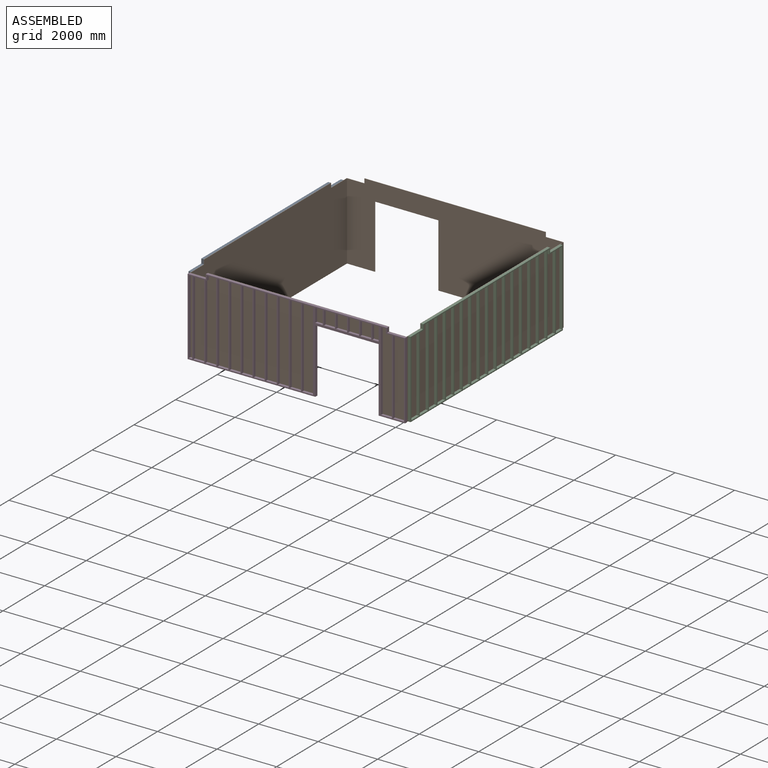
[diagram: assembled view]
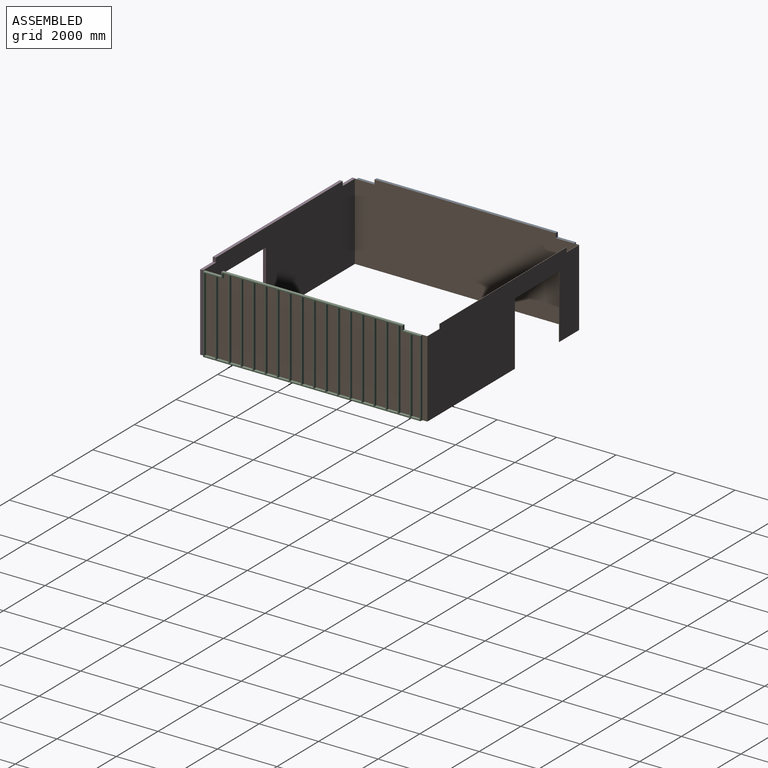
[diagram: assembled view, second angle]
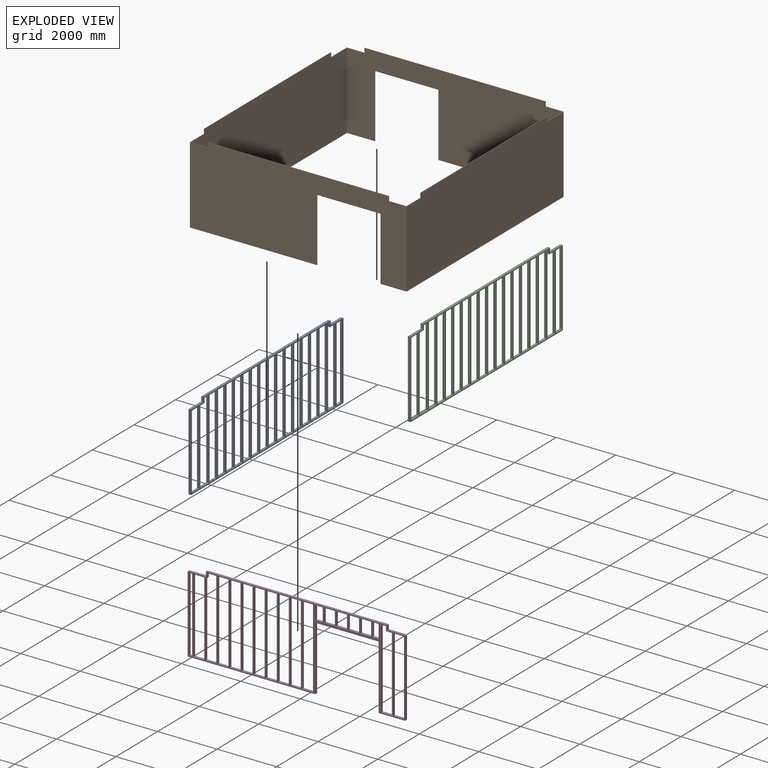
[diagram: exploded view]
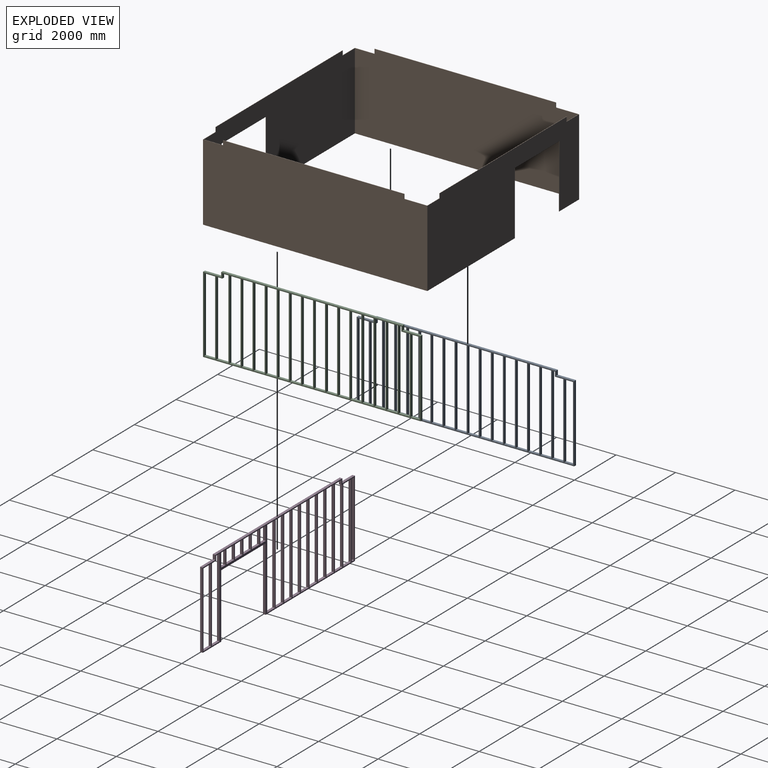
[diagram: exploded view, second angle]
ASSEMBLY  parts=4 mates=2
PART A: 86 faces, bbox 88.9x7315.2x2743.2 mm
  f0: plane 368.3x88.9mm, normal (0,0,1), area 32741.9mm2, adj f34,f38,f82,f84
  f1: plane 279.4x88.9mm, normal (0,0,-1), area 24838.7mm2, adj f34,f38,f49,f84
  f2: plane 368.3x88.9mm, normal (0,0,-1), area 32741.9mm2, adj f34,f38,f80,f83
  f3: plane 368.3x88.9mm, normal (0,0,1), area 32741.9mm2, adj f34,f38,f80,f83
  f4: plane 368.3x88.9mm, normal (0,0,-1), area 32741.9mm2, adj f34,f38,f78,f81
  f5: plane 368.3x88.9mm, normal (0,0,1), area 32741.9mm2, adj f34,f38,f78,f81
  f6: plane 368.3x88.9mm, normal (0,0,-1), area 32741.9mm2, adj f34,f38,f76,f79
  f7: plane 368.3x88.9mm, normal (0,0,1), area 32741.9mm2, adj f34,f38,f76,f79
  f8: plane 368.3x88.9mm, normal (0,0,-1), area 32741.9mm2, adj f34,f38,f74,f77
  f9: plane 368.3x88.9mm, normal (0,0,1), area 32741.9mm2, adj f34,f38,f74,f77
  f10: plane 368.3x88.9mm, normal (0,0,-1), area 32741.9mm2, adj f34,f38,f72,f75
  f11: plane 368.3x88.9mm, normal (0,0,1), area 32741.9mm2, adj f34,f38,f72,f75
  f12: plane 368.3x88.9mm, normal (0,0,-1), area 32741.9mm2, adj f34,f38,f70,f73
  f13: plane 368.3x88.9mm, normal (0,0,1), area 32741.9mm2, adj f34,f38,f70,f73
  f14: plane 368.3x88.9mm, normal (0,0,-1), area 32741.9mm2, adj f34,f38,f68,f71
  f15: plane 368.3x88.9mm, normal (0,0,1), area 32741.9mm2, adj f34,f38,f68,f71
  f16: plane 368.3x88.9mm, normal (0,0,-1), area 32741.9mm2, adj f34,f38,f66,f69
  f17: plane 368.3x88.9mm, normal (0,0,1), area 32741.9mm2, adj f34,f38,f66,f69
  f18: plane 368.3x88.9mm, normal (0,0,-1), area 32741.9mm2, adj f34,f38,f64,f67
  f19: plane 368.3x88.9mm, normal (0,0,1), area 32741.9mm2, adj f34,f38,f64,f67
  f20: plane 368.3x88.9mm, normal (0,0,-1), area 32741.9mm2, adj f34,f38,f62,f65
  f21: plane 368.3x88.9mm, normal (0,0,1), area 32741.9mm2, adj f34,f38,f62,f65
  f22: plane 368.3x88.9mm, normal (0,0,-1), area 32741.9mm2, adj f34,f38,f60,f63
  f23: plane 368.3x88.9mm, normal (0,0,1), area 32741.9mm2, adj f34,f38,f60,f63
  f24: plane 368.3x88.9mm, normal (0,0,-1), area 32741.9mm2, adj f34,f38,f58,f61
  f25: plane 368.3x88.9mm, normal (0,0,1), area 32741.9mm2, adj f34,f38,f58,f61
  f26: plane 368.3x88.9mm, normal (0,0,-1), area 32741.9mm2, adj f34,f38,f56,f59
  f27: plane 368.3x88.9mm, normal (0,0,1), area 32741.9mm2, adj f34,f38,f56,f59
  f28: plane 368.3x88.9mm, normal (0,0,-1), area 32741.9mm2, adj f34,f38,f54,f57
  f29: plane 368.3x88.9mm, normal (0,0,1), area 32741.9mm2, adj f34,f38,f54,f57
  f30: plane 203.2x88.9mm, normal (0,0,-1), area 18064.5mm2, adj f34,f38,f51,f55
  f31: plane 406.4x88.9mm, normal (0,0,1), area 36129mm2, adj f34,f38,f53,f55
  f32: plane 368.3x88.9mm, normal (0,0,1), area 32741.9mm2, adj f34,f38,f45,f52
  f33: plane 203.2x88.9mm, normal (0,0,-1), area 18064.5mm2, adj f34,f38,f51,f53
  f34: plane 7315.2x2743.2mm, normal (1,0,0), area 2476446.7mm2, adj f0,f1,f2,f3,f4,f5,f6,f7
  f35: plane 6096x88.9mm, normal (0,0,1), area 541934.4mm2, adj f34,f38,f41,f43
  f36: plane 2590.8x88.9mm, normal (0,-1,0), area 230322.1mm2, adj f34,f38,f39,f42
  f37: plane 2590.8x88.9mm, normal (0,1,0), area 230322.1mm2, adj f34,f38,f39,f40
  f38: plane 7315.2x2743.2mm, normal (-1,0,0), area 2476446.7mm2, adj f0,f1,f2,f3,f4,f5,f6,f7
  f39: plane 7315.2x88.9mm, normal (0,0,-1), area 650321.3mm2, adj f34,f36,f37,f38
  f40: plane 609.6x88.9mm, normal (0,0,1), area 54193.4mm2, adj f34,f37,f38,f41
  f41: plane 152.4x88.9mm, normal (0,1,0), area 13548.4mm2, adj f34,f35,f38,f40
  f42: plane 609.6x88.9mm, normal (0,0,1), area 54193.4mm2, adj f34,f36,f38,f43
  f43: plane 152.4x88.9mm, normal (0,-1,0), area 13548.4mm2, adj f34,f35,f38,f42
  f44: plane 88.9x88.9mm, normal (0,0,-1), area 7903.2mm2, adj f34,f38,f49,f82
  f45: plane 2514.6x88.9mm, normal (0,1,0), area 223547.9mm2, adj f32,f34,f38,f50
  f46: plane 2514.6x88.9mm, normal (0,-1,0), area 223547.9mm2, adj f34,f38,f47,f48
  f47: plane 292.1x88.9mm, normal (0,0,1), area 25967.7mm2, adj f34,f38,f46,f85
  f48: plane 292.1x88.9mm, normal (0,0,-1), area 25967.7mm2, adj f34,f38,f46,f85
  f49: plane 152.4x88.9mm, normal (0,-1,0), area 13548.4mm2, adj f1,f34,f38,f44
  f50: plane 368.3x88.9mm, normal (0,0,-1), area 32741.9mm2, adj f34,f38,f45,f52
  f51: plane 152.4x88.9mm, normal (0,1,0), area 13548.4mm2, adj f30,f33,f34,f38
  f52: plane 2514.6x88.9mm, normal (0,-1,0), area 223547.9mm2, adj f32,f34,f38,f50
  f53: plane 2514.6x88.9mm, normal (0,1,0), area 223547.9mm2, adj f31,f33,f34,f38
  f54: plane 2667x88.9mm, normal (0,1,0), area 237096.3mm2, adj f28,f29,f34,f38
  f55: plane 2667x88.9mm, normal (0,-1,0), area 237096.3mm2, adj f30,f31,f34,f38
  f56: plane 2667x88.9mm, normal (0,1,0), area 237096.3mm2, adj f26,f27,f34,f38
  f57: plane 2667x88.9mm, normal (0,-1,0), area 237096.3mm2, adj f28,f29,f34,f38
  f58: plane 2667x88.9mm, normal (0,1,0), area 237096.3mm2, adj f24,f25,f34,f38
  f59: plane 2667x88.9mm, normal (0,-1,0), area 237096.3mm2, adj f26,f27,f34,f38
  f60: plane 2667x88.9mm, normal (0,1,0), area 237096.3mm2, adj f22,f23,f34,f38
  f61: plane 2667x88.9mm, normal (0,-1,0), area 237096.3mm2, adj f24,f25,f34,f38
  f62: plane 2667x88.9mm, normal (0,1,0), area 237096.3mm2, adj f20,f21,f34,f38
  f63: plane 2667x88.9mm, normal (0,-1,0), area 237096.3mm2, adj f22,f23,f34,f38
  f64: plane 2667x88.9mm, normal (0,1,0), area 237096.3mm2, adj f18,f19,f34,f38
  f65: plane 2667x88.9mm, normal (0,-1,0), area 237096.3mm2, adj f20,f21,f34,f38
  f66: plane 2667x88.9mm, normal (0,1,0), area 237096.3mm2, adj f16,f17,f34,f38
  f67: plane 2667x88.9mm, normal (0,-1,0), area 237096.3mm2, adj f18,f19,f34,f38
  f68: plane 2667x88.9mm, normal (0,1,0), area 237096.3mm2, adj f14,f15,f34,f38
  f69: plane 2667x88.9mm, normal (0,-1,0), area 237096.3mm2, adj f16,f17,f34,f38
  f70: plane 2667x88.9mm, normal (0,1,0), area 237096.3mm2, adj f12,f13,f34,f38
  f71: plane 2667x88.9mm, normal (0,-1,0), area 237096.3mm2, adj f14,f15,f34,f38
  f72: plane 2667x88.9mm, normal (0,1,0), area 237096.3mm2, adj f10,f11,f34,f38
  f73: plane 2667x88.9mm, normal (0,-1,0), area 237096.3mm2, adj f12,f13,f34,f38
  f74: plane 2667x88.9mm, normal (0,1,0), area 237096.3mm2, adj f8,f9,f34,f38
  f75: plane 2667x88.9mm, normal (0,-1,0), area 237096.3mm2, adj f10,f11,f34,f38
  f76: plane 2667x88.9mm, normal (0,1,0), area 237096.3mm2, adj f6,f7,f34,f38
  f77: plane 2667x88.9mm, normal (0,-1,0), area 237096.3mm2, adj f8,f9,f34,f38
  f78: plane 2667x88.9mm, normal (0,1,0), area 237096.3mm2, adj f4,f5,f34,f38
  f79: plane 2667x88.9mm, normal (0,-1,0), area 237096.3mm2, adj f6,f7,f34,f38
  f80: plane 2667x88.9mm, normal (0,1,0), area 237096.3mm2, adj f2,f3,f34,f38
  f81: plane 2667x88.9mm, normal (0,-1,0), area 237096.3mm2, adj f4,f5,f34,f38
  f82: plane 2667x88.9mm, normal (0,1,0), area 237096.3mm2, adj f0,f34,f38,f44
  f83: plane 2667x88.9mm, normal (0,-1,0), area 237096.3mm2, adj f2,f3,f34,f38
  f84: plane 2514.6x88.9mm, normal (0,-1,0), area 223547.9mm2, adj f0,f1,f34,f38
  f85: plane 2514.6x88.9mm, normal (0,1,0), area 223547.9mm2, adj f34,f38,f47,f48
PART B: 32 faces, bbox 7289.8x7543.8x2743.2 mm
  f0: plane 7543.8x4279.9mm, normal (0,0,-1), area 161935.2mm2, adj f1,f2,f3,f4,f7,f8,f15,f30
  f1: plane 7264.4x2743.2mm, normal (0,-1,0), area 15197389mm2, adj f0,f6,f7,f10,f12,f23,f25,f26
  f2: plane 7289.8x2743.2mm, normal (0,-1,0), area 15263195.3mm2, adj f0,f3,f5,f9,f12,f14,f15,f16
  f3: plane 7543.8x2743.2mm, normal (1,0,0), area 20473507.4mm2, adj f0,f2,f4,f11,f21,f22,f24,f25
  f4: plane 7289.8x2743.2mm, normal (0,1,0), area 15263195.3mm2, adj f0,f3,f5,f10,f12,f23,f25,f26
  f5: plane 7543.8x2743.2mm, normal (-1,0,0), area 20473507.4mm2, adj f2,f4,f12,f13,f18,f19,f27,f28
  f6: plane 7518.4x2743.2mm, normal (1,0,0), area 20407701.1mm2, adj f1,f8,f12,f13,f18,f19,f27,f28
  f7: plane 7518.4x2743.2mm, normal (-1,0,0), area 20407701.1mm2, adj f0,f1,f8,f11,f21,f22,f24,f25
  f8: plane 7264.4x2743.2mm, normal (0,1,0), area 15197389mm2, adj f0,f6,f7,f9,f12,f14,f15,f16
  f9: plane 6096x12.7mm, normal (0,0,1), area 77419.2mm2, adj f2,f8,f17,f20
  f10: plane 6096x12.7mm, normal (0,0,1), area 77419.2mm2, adj f1,f4,f23,f26
  f11: plane 6096x12.7mm, normal (0,0,1), area 77419.2mm2, adj f3,f7,f21,f24
  f12: plane 7543.8x4203.7mm, normal (0,0,-1), area 159999.7mm2, adj f1,f2,f4,f5,f6,f8,f14,f29
  f13: plane 6096x12.7mm, normal (0,0,1), area 77419.2mm2, adj f5,f6,f18,f27
  f14: plane 2133.6x12.7mm, normal (1,0,0), area 27096.7mm2, adj f2,f8,f12,f16
  f15: plane 2133.6x12.7mm, normal (-1,0,0), area 27096.7mm2, adj f0,f2,f8,f16
  f16: plane 2133.6x12.7mm, normal (0,0,-1), area 27096.7mm2, adj f2,f8,f14,f15
  f17: plane 152.4x12.7mm, normal (-1,0,0), area 1935.5mm2, adj f2,f8,f9,f19
  f18: plane 152.4x12.7mm, normal (0,-1,0), area 1935.5mm2, adj f5,f6,f13,f19
  f19: plane 774.7x596.9mm, normal (0,0,1), area 17258mm2, adj f2,f5,f6,f8,f17,f18
  f20: plane 152.4x12.7mm, normal (1,0,0), area 1935.5mm2, adj f2,f8,f9,f22
  f21: plane 152.4x12.7mm, normal (0,-1,0), area 1935.5mm2, adj f3,f7,f11,f22
  f22: plane 774.7x596.9mm, normal (0,0,1), area 17258mm2, adj f2,f3,f7,f8,f20,f21
  f23: plane 152.4x12.7mm, normal (1,0,0), area 1935.5mm2, adj f1,f4,f10,f25
  f24: plane 152.4x12.7mm, normal (0,1,0), area 1935.5mm2, adj f3,f7,f11,f25
  f25: plane 673.1x596.9mm, normal (0,0,1), area 15967.7mm2, adj f1,f3,f4,f7,f23,f24
  f26: plane 152.4x12.7mm, normal (-1,0,0), area 1935.5mm2, adj f1,f4,f10,f28
  f27: plane 152.4x12.7mm, normal (0,1,0), area 1935.5mm2, adj f5,f6,f13,f28
  f28: plane 673.1x596.9mm, normal (0,0,1), area 15967.7mm2, adj f1,f4,f5,f6,f26,f27
  f29: plane 2133.6x12.7mm, normal (1,0,0), area 27096.7mm2, adj f1,f4,f12,f31
  f30: plane 2133.6x12.7mm, normal (-1,0,0), area 27096.7mm2, adj f0,f1,f4,f31
  f31: plane 2133.6x12.7mm, normal (0,0,-1), area 27096.7mm2, adj f1,f4,f29,f30
PART C: same geometry as A
PART D: 94 faces, bbox 88.9x7315.2x2743.2 mm
  f0: plane 7315.2x2743.2mm, normal (1,0,0), area 2435801.6mm2, adj f1,f2,f3,f4,f5,f6,f7,f8
  f1: plane 889x88.9mm, normal (0,0,-1), area 79032.1mm2, adj f0,f40,f42,f59
  f2: plane 368.3x88.9mm, normal (0,0,1), area 32741.9mm2, adj f0,f42,f91,f92
  f3: plane 368.3x88.9mm, normal (0,0,-1), area 32741.9mm2, adj f0,f42,f91,f92
  f4: plane 368.3x88.9mm, normal (0,0,1), area 32741.9mm2, adj f0,f42,f89,f90
  f5: plane 88.9x50.8mm, normal (0,0,-1), area 4516.1mm2, adj f0,f42,f53,f90
  f6: plane 368.3x88.9mm, normal (0,0,-1), area 32741.9mm2, adj f0,f42,f87,f88
  f7: plane 368.3x88.9mm, normal (0,0,1), area 32741.9mm2, adj f0,f42,f87,f88
  f8: plane 368.3x88.9mm, normal (0,0,-1), area 32741.9mm2, adj f0,f42,f85,f86
  f9: plane 368.3x88.9mm, normal (0,0,1), area 32741.9mm2, adj f0,f42,f85,f86
  f10: plane 368.3x88.9mm, normal (0,0,-1), area 32741.9mm2, adj f0,f42,f83,f84
  f11: plane 368.3x88.9mm, normal (0,0,1), area 32741.9mm2, adj f0,f42,f83,f84
  f12: plane 368.3x88.9mm, normal (0,0,-1), area 32741.9mm2, adj f0,f42,f81,f82
  f13: plane 368.3x88.9mm, normal (0,0,1), area 32741.9mm2, adj f0,f42,f81,f82
  f14: plane 368.3x88.9mm, normal (0,0,-1), area 32741.9mm2, adj f0,f42,f79,f80
  f15: plane 368.3x88.9mm, normal (0,0,1), area 32741.9mm2, adj f0,f42,f79,f80
  f16: plane 368.3x88.9mm, normal (0,0,-1), area 32741.9mm2, adj f0,f42,f77,f78
  f17: plane 368.3x88.9mm, normal (0,0,1), area 32741.9mm2, adj f0,f42,f77,f78
  f18: plane 368.3x88.9mm, normal (0,0,-1), area 32741.9mm2, adj f0,f42,f75,f76
  f19: plane 368.3x88.9mm, normal (0,0,1), area 32741.9mm2, adj f0,f42,f75,f76
  f20: plane 368.3x88.9mm, normal (0,0,-1), area 32741.9mm2, adj f0,f42,f61,f74
  f21: plane 368.3x88.9mm, normal (0,0,1), area 32741.9mm2, adj f0,f42,f61,f74
  f22: plane 368.3x88.9mm, normal (0,0,-1), area 32741.9mm2, adj f0,f42,f71,f72
  f23: plane 368.3x88.9mm, normal (0,0,1), area 32741.9mm2, adj f0,f42,f71,f72
  f24: plane 368.3x88.9mm, normal (0,0,-1), area 32741.9mm2, adj f0,f42,f69,f70
  f25: plane 368.3x88.9mm, normal (0,0,1), area 32741.9mm2, adj f0,f42,f69,f70
  f26: plane 368.3x88.9mm, normal (0,0,-1), area 32741.9mm2, adj f0,f42,f67,f68
  f27: plane 368.3x88.9mm, normal (0,0,1), area 32741.9mm2, adj f0,f42,f67,f68
  f28: plane 368.3x88.9mm, normal (0,0,-1), area 32741.9mm2, adj f0,f42,f65,f66
  f29: plane 368.3x88.9mm, normal (0,0,1), area 32741.9mm2, adj f0,f42,f65,f66
  f30: plane 215.9x88.9mm, normal (0,0,-1), area 19193.5mm2, adj f0,f32,f42,f64
  f31: plane 215.9x88.9mm, normal (0,0,1), area 19193.5mm2, adj f0,f32,f42,f64
  f32: plane 457.2x88.9mm, normal (0,1,0), area 40645.1mm2, adj f0,f30,f31,f42
  f33: plane 457.2x88.9mm, normal (0,-1,0), area 40645.1mm2, adj f0,f34,f42,f63
  f34: plane 254x88.9mm, normal (0,0,-1), area 22580.6mm2, adj f0,f33,f42,f73
  f35: plane 165.1x88.9mm, normal (0,0,-1), area 14677.4mm2, adj f0,f42,f55,f58
  f36: plane 368.3x88.9mm, normal (0,0,1), area 32741.9mm2, adj f0,f42,f57,f58
  f37: plane 368.3x88.9mm, normal (0,0,1), area 32741.9mm2, adj f0,f42,f49,f56
  f38: plane 203.2x88.9mm, normal (0,0,-1), area 18064.5mm2, adj f0,f42,f55,f57
  f39: plane 6096x88.9mm, normal (0,0,1), area 541934.4mm2, adj f0,f42,f45,f47
  f40: plane 2590.8x88.9mm, normal (0,-1,0), area 230322.1mm2, adj f0,f1,f42,f46
  f41: plane 2590.8x88.9mm, normal (0,1,0), area 230322.1mm2, adj f0,f42,f43,f44
  f42: plane 7315.2x2743.2mm, normal (-1,0,0), area 2435801.6mm2, adj f1,f2,f3,f4,f5,f6,f7,f8
  f43: plane 4292.6x88.9mm, normal (0,0,-1), area 381612.1mm2, adj f0,f41,f42,f60
  f44: plane 609.6x88.9mm, normal (0,0,1), area 54193.4mm2, adj f0,f41,f42,f45
  f45: plane 152.4x88.9mm, normal (0,1,0), area 13548.4mm2, adj f0,f39,f42,f44
  f46: plane 609.6x88.9mm, normal (0,0,1), area 54193.4mm2, adj f0,f40,f42,f47
  f47: plane 152.4x88.9mm, normal (0,-1,0), area 13548.4mm2, adj f0,f39,f42,f46
  f48: plane 317.5x88.9mm, normal (0,0,-1), area 28225.7mm2, adj f0,f42,f53,f89
  f49: plane 2514.6x88.9mm, normal (0,1,0), area 223547.9mm2, adj f0,f37,f42,f54
  f50: plane 2514.6x88.9mm, normal (0,-1,0), area 223547.9mm2, adj f0,f42,f51,f52
  f51: plane 114.3x88.9mm, normal (0,0,1), area 10161.3mm2, adj f0,f42,f50,f93
  f52: plane 114.3x88.9mm, normal (0,0,-1), area 10161.3mm2, adj f0,f42,f50,f93
  f53: plane 152.4x88.9mm, normal (0,-1,0), area 13548.4mm2, adj f0,f5,f42,f48
  f54: plane 368.3x88.9mm, normal (0,0,-1), area 32741.9mm2, adj f0,f42,f49,f56
  f55: plane 152.4x88.9mm, normal (0,1,0), area 13548.4mm2, adj f0,f35,f38,f42
  f56: plane 2514.6x88.9mm, normal (0,-1,0), area 223547.9mm2, adj f0,f37,f42,f54
  f57: plane 2514.6x88.9mm, normal (0,1,0), area 223547.9mm2, adj f0,f36,f38,f42
  f58: plane 2667x88.9mm, normal (0,-1,0), area 237096.3mm2, adj f0,f35,f36,f42
  f59: plane 2171.7x88.9mm, normal (0,1,0), area 193064.1mm2, adj f0,f1,f42,f62
  f60: plane 2171.7x88.9mm, normal (0,-1,0), area 193064.1mm2, adj f0,f42,f43,f62
  f61: plane 2667x88.9mm, normal (0,1,0), area 237096.3mm2, adj f0,f20,f21,f42
  f62: plane 2133.6x88.9mm, normal (0,0,-1), area 189677mm2, adj f0,f42,f59,f60
  f63: plane 254x88.9mm, normal (0,0,1), area 22580.6mm2, adj f0,f33,f42,f73
  f64: plane 457.2x88.9mm, normal (0,-1,0), area 40645.1mm2, adj f0,f30,f31,f42
  f65: plane 457.2x88.9mm, normal (0,1,0), area 40645.1mm2, adj f0,f28,f29,f42
  f66: plane 457.2x88.9mm, normal (0,-1,0), area 40645.1mm2, adj f0,f28,f29,f42
  f67: plane 457.2x88.9mm, normal (0,1,0), area 40645.1mm2, adj f0,f26,f27,f42
  f68: plane 457.2x88.9mm, normal (0,-1,0), area 40645.1mm2, adj f0,f26,f27,f42
  f69: plane 457.2x88.9mm, normal (0,1,0), area 40645.1mm2, adj f0,f24,f25,f42
  f70: plane 457.2x88.9mm, normal (0,-1,0), area 40645.1mm2, adj f0,f24,f25,f42
  f71: plane 457.2x88.9mm, normal (0,1,0), area 40645.1mm2, adj f0,f22,f23,f42
  f72: plane 457.2x88.9mm, normal (0,-1,0), area 40645.1mm2, adj f0,f22,f23,f42
  f73: plane 457.2x88.9mm, normal (0,1,0), area 40645.1mm2, adj f0,f34,f42,f63
  f74: plane 2667x88.9mm, normal (0,-1,0), area 237096.3mm2, adj f0,f20,f21,f42
  f75: plane 2667x88.9mm, normal (0,1,0), area 237096.3mm2, adj f0,f18,f19,f42
  f76: plane 2667x88.9mm, normal (0,-1,0), area 237096.3mm2, adj f0,f18,f19,f42
  f77: plane 2667x88.9mm, normal (0,1,0), area 237096.3mm2, adj f0,f16,f17,f42
  f78: plane 2667x88.9mm, normal (0,-1,0), area 237096.3mm2, adj f0,f16,f17,f42
  f79: plane 2667x88.9mm, normal (0,1,0), area 237096.3mm2, adj f0,f14,f15,f42
  f80: plane 2667x88.9mm, normal (0,-1,0), area 237096.3mm2, adj f0,f14,f15,f42
  f81: plane 2667x88.9mm, normal (0,1,0), area 237096.3mm2, adj f0,f12,f13,f42
  f82: plane 2667x88.9mm, normal (0,-1,0), area 237096.3mm2, adj f0,f12,f13,f42
  f83: plane 2667x88.9mm, normal (0,1,0), area 237096.3mm2, adj f0,f10,f11,f42
  f84: plane 2667x88.9mm, normal (0,-1,0), area 237096.3mm2, adj f0,f10,f11,f42
  f85: plane 2667x88.9mm, normal (0,1,0), area 237096.3mm2, adj f0,f8,f9,f42
  f86: plane 2667x88.9mm, normal (0,-1,0), area 237096.3mm2, adj f0,f8,f9,f42
  f87: plane 2667x88.9mm, normal (0,1,0), area 237096.3mm2, adj f0,f6,f7,f42
  f88: plane 2667x88.9mm, normal (0,-1,0), area 237096.3mm2, adj f0,f6,f7,f42
  f89: plane 2667x88.9mm, normal (0,1,0), area 237096.3mm2, adj f0,f4,f42,f48
  f90: plane 2514.6x88.9mm, normal (0,-1,0), area 223547.9mm2, adj f0,f4,f5,f42
  f91: plane 2514.6x88.9mm, normal (0,1,0), area 223547.9mm2, adj f0,f2,f3,f42
  f92: plane 2514.6x88.9mm, normal (0,-1,0), area 223547.9mm2, adj f0,f2,f3,f42
  f93: plane 2514.6x88.9mm, normal (0,1,0), area 223547.9mm2, adj f0,f42,f51,f52
PLACE A at identity fixed
PLACE B rot(axis=(0,0,1),180deg) t=(3733.8,50.8,0)mm
PLACE C t=(7378.7,0,0)mm
PLACE D rot(axis=(0,0,1),90deg) t=(3733.8,-3810,0)mm
MATE fastened B.f12 <-> D.f1  axis (0,0,1) through (7378.7,-3721.1,0)mm
MATE fastened A.f39 <-> D.f43  axis (0,0,1) through (88.9,-3657.6,0)mm
